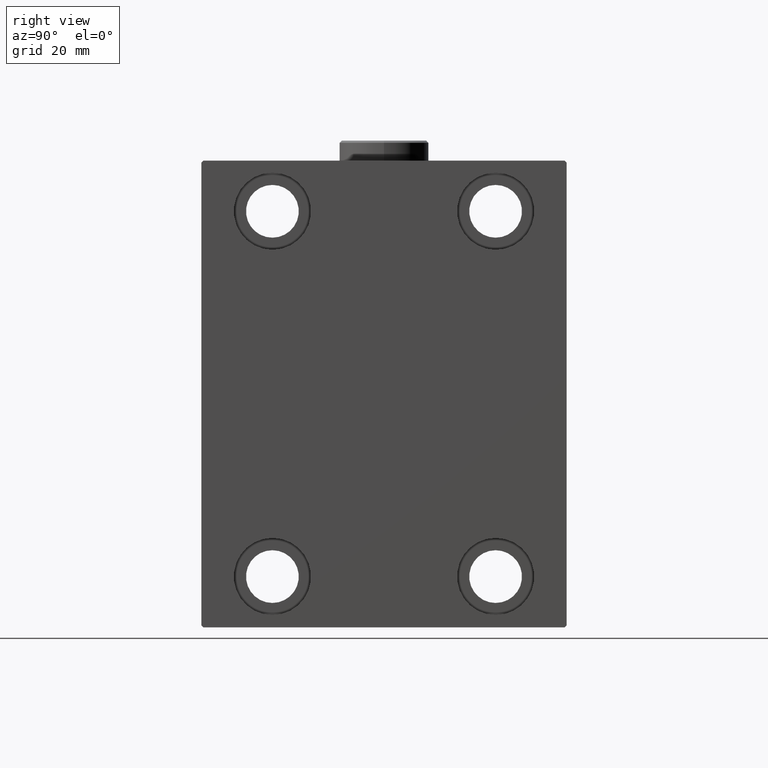
[diagram: clean part render]
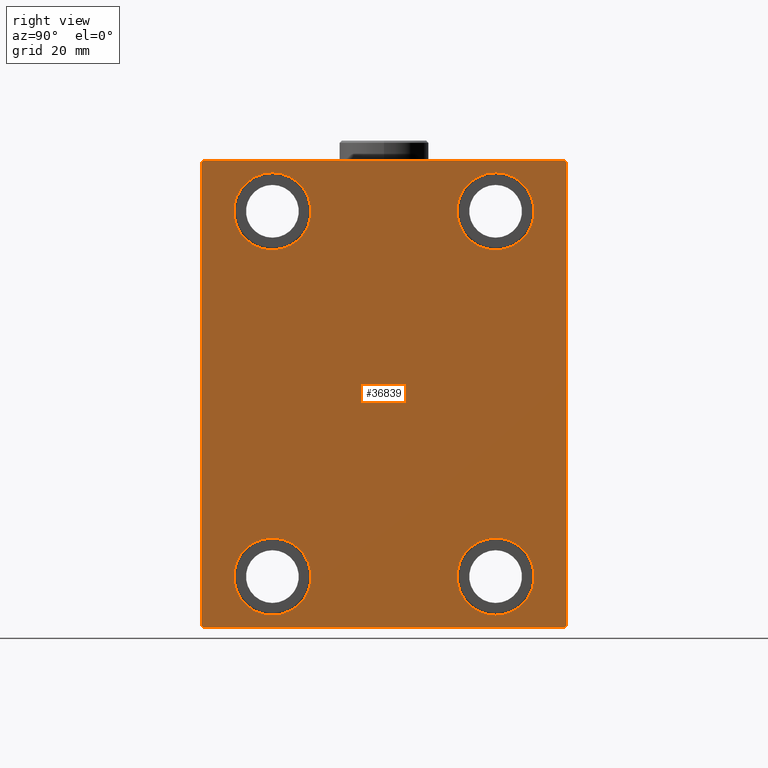
[diagram: same view with one face highlighted and labeled with its STEP entity id]
A machine part, right view. The second image highlights one B-rep face of the part: STEP entity #36839.
In plain terms, the highlighted planar face has unit normal (1, 0, 0).
Its self-contained STEP definition (entity closure, byte-faithful):
#828 = CARTESIAN_POINT ( 'NONE',  ( 88.00000000000000000, 27.50000000000001066, 54.50000000000000711 ) ) ;
#898 = CARTESIAN_POINT ( 'NONE',  ( 88.00000000000000000, 45.00000000000000000, 57.00000000000000711 ) ) ;
#1189 = CARTESIAN_POINT ( 'NONE',  ( 88.00000000000000000, -45.00000000000000000, 57.00000000000000711 ) ) ;
#1442 = EDGE_LOOP ( 'NONE', ( #37946, #31533 ) ) ;
#1805 = CIRCLE ( 'NONE', #44040, 9.500000000000001776 ) ;
#1835 = CIRCLE ( 'NONE', #25864, 9.500000000000001776 ) ;
#2579 = LINE ( 'NONE', #27191, #21016 ) ;
#2630 = CARTESIAN_POINT ( 'NONE',  ( 88.00000000000000000, 45.00000000000001421, -57.50000000000000711 ) ) ;
#2706 = DIRECTION ( 'NONE',  ( 0.000000000000000000, 0.000000000000000000, 1.000000000000000000 ) ) ;
#2805 = DIRECTION ( 'NONE',  ( -0.000000000000000000, 0.7071067811865573427, -0.7071067811865378028 ) ) ;
#3387 = EDGE_LOOP ( 'NONE', ( #14261, #11765 ) ) ;
#3648 = PLANE ( 'NONE',  #22127 ) ;
#3873 = DIRECTION ( 'NONE',  ( 0.000000000000000000, 0.000000000000000000, -1.000000000000000000 ) ) ;
#4791 = CARTESIAN_POINT ( 'NONE',  ( 88.00000000000000000, -51.00000000000063238, 50.99999999999921840 ) ) ;
#5290 = VECTOR ( 'NONE', #37983, 1000.000000000000000 ) ;
#5377 = CARTESIAN_POINT ( 'NONE',  ( 88.00000000000000000, 51.00000000000063949, -50.99999999999923261 ) ) ;
#5838 = VERTEX_POINT ( 'NONE', #1189 ) ;
#5870 = DIRECTION ( 'NONE',  ( 0.000000000000000000, 0.000000000000000000, 1.000000000000000000 ) ) ;
#6759 = ORIENTED_EDGE ( 'NONE', *, *, #39813, .T. ) ;
#6842 = FACE_BOUND ( 'NONE', #25703, .T. ) ;
#7036 = EDGE_CURVE ( 'NONE', #31376, #14358, #17664, .T. ) ;
#7172 = LINE ( 'NONE', #14898, #14186 ) ;
#7280 = DIRECTION ( 'NONE',  ( 1.000000000000000000, 0.000000000000000000, 0.000000000000000000 ) ) ;
#7671 = CARTESIAN_POINT ( 'NONE',  ( 88.00000000000000000, -27.49999999999998934, 35.50000000000000711 ) ) ;
#7703 = CARTESIAN_POINT ( 'NONE',  ( 88.00000000000000000, 27.50000000000001066, 45.00000000000000711 ) ) ;
#7897 = CIRCLE ( 'NONE', #45067, 9.500000000000001776 ) ;
#8155 = CIRCLE ( 'NONE', #21900, 9.500000000000001776 ) ;
#8200 = CARTESIAN_POINT ( 'NONE',  ( 88.00000000000000000, 45.00000000000000000, 57.50000000000000711 ) ) ;
#9062 = ORIENTED_EDGE ( 'NONE', *, *, #27956, .T. ) ;
#9184 = CARTESIAN_POINT ( 'NONE',  ( 88.00000000000000000, -27.49999999999998934, 45.00000000000000711 ) ) ;
#9274 = CARTESIAN_POINT ( 'NONE',  ( 88.00000000000000000, -27.50000000000000000, -35.49999999999998579 ) ) ;
#9668 = AXIS2_PLACEMENT_3D ( 'NONE', #12709, #13151, #2706 ) ;
#9956 = ORIENTED_EDGE ( 'NONE', *, *, #22939, .T. ) ;
#10220 = CARTESIAN_POINT ( 'NONE',  ( 88.00000000000000000, 44.50000000000000000, -57.50000000000000711 ) ) ;
#10868 = VERTEX_POINT ( 'NONE', #39738 ) ;
#11022 = DIRECTION ( 'NONE',  ( 0.000000000000000000, 1.000000000000000000, 0.000000000000000000 ) ) ;
#11162 = VERTEX_POINT ( 'NONE', #20703 ) ;
#11765 = ORIENTED_EDGE ( 'NONE', *, *, #22903, .T. ) ;
#12709 = CARTESIAN_POINT ( 'NONE',  ( 88.00000000000000000, -27.50000000000000000, -44.99999999999998579 ) ) ;
#12897 = ORIENTED_EDGE ( 'NONE', *, *, #42112, .T. ) ;
#12939 = ORIENTED_EDGE ( 'NONE', *, *, #12991, .T. ) ;
#12949 = EDGE_CURVE ( 'NONE', #14358, #31376, #1835, .T. ) ;
#12991 = EDGE_CURVE ( 'NONE', #27662, #18596, #7172, .T. ) ;
#13136 = DIRECTION ( 'NONE',  ( -1.000000000000000000, -0.000000000000000000, -0.000000000000000000 ) ) ;
#13151 = DIRECTION ( 'NONE',  ( -1.000000000000000000, -0.000000000000000000, -0.000000000000000000 ) ) ;
#13161 = CIRCLE ( 'NONE', #39461, 9.500000000000001776 ) ;
#13566 = VERTEX_POINT ( 'NONE', #898 ) ;
#14186 = VECTOR ( 'NONE', #11022, 1000.000000000000000 ) ;
#14261 = ORIENTED_EDGE ( 'NONE', *, *, #40199, .T. ) ;
#14358 = VERTEX_POINT ( 'NONE', #34006 ) ;
#14474 = EDGE_CURVE ( 'NONE', #34413, #5838, #22765, .T. ) ;
#14477 = EDGE_LOOP ( 'NONE', ( #26602, #39304 ) ) ;
#14898 = CARTESIAN_POINT ( 'NONE',  ( 88.00000000000000000, -45.00000000000000000, -57.50000000000000711 ) ) ;
#16098 = CARTESIAN_POINT ( 'NONE',  ( 88.00000000000000000, 27.50000000000001066, 45.00000000000000711 ) ) ;
#16159 = CARTESIAN_POINT ( 'NONE',  ( 88.00000000000000000, 50.99999999999940314, 51.00000000000082423 ) ) ;
#17008 = EDGE_LOOP ( 'NONE', ( #6759, #18754, #12897, #33911, #12939, #39127, #18859, #9062 ) ) ;
#17054 = VECTOR ( 'NONE', #18691, 1000.000000000000000 ) ;
#17131 = CARTESIAN_POINT ( 'NONE',  ( 88.00000000000000000, -44.50000000000000000, -57.50000000000000711 ) ) ;
#17362 = CARTESIAN_POINT ( 'NONE',  ( 88.00000000000000000, 44.50000000000001421, 57.50000000000000711 ) ) ;
#17485 = CARTESIAN_POINT ( 'NONE',  ( 88.00000000000000000, -45.00000000000000000, 57.49999999999999289 ) ) ;
#17664 = CIRCLE ( 'NONE', #9668, 9.500000000000001776 ) ;
#17767 = VECTOR ( 'NONE', #26189, 1000.000000000000114 ) ;
#18166 = DIRECTION ( 'NONE',  ( 0.000000000000000000, 0.000000000000000000, -1.000000000000000000 ) ) ;
#18596 = VERTEX_POINT ( 'NONE', #10220 ) ;
#18691 = DIRECTION ( 'NONE',  ( 0.000000000000000000, -1.000000000000000000, -1.541976423090495387E-16 ) ) ;
#18754 = ORIENTED_EDGE ( 'NONE', *, *, #14474, .T. ) ;
#18859 = ORIENTED_EDGE ( 'NONE', *, *, #35066, .T. ) ;
#18958 = VERTEX_POINT ( 'NONE', #29084 ) ;
#20023 = DIRECTION ( 'NONE',  ( -1.000000000000000000, -0.000000000000000000, -0.000000000000000000 ) ) ;
#20427 = CARTESIAN_POINT ( 'NONE',  ( 88.00000000000000000, 27.49999999999998934, -35.49999999999998579 ) ) ;
#20703 = CARTESIAN_POINT ( 'NONE',  ( 88.00000000000000000, -27.49999999999998934, 54.50000000000000711 ) ) ;
#20760 = CARTESIAN_POINT ( 'NONE',  ( 88.00000000000000000, 0.000000000000000000, 0.000000000000000000 ) ) ;
#21016 = VECTOR ( 'NONE', #2805, 1000.000000000000000 ) ;
#21062 = EDGE_CURVE ( 'NONE', #18596, #18958, #42823, .T. ) ;
#21193 = FACE_BOUND ( 'NONE', #1442, .T. ) ;
#21900 = AXIS2_PLACEMENT_3D ( 'NONE', #9184, #36805, #22204 ) ;
#22127 = AXIS2_PLACEMENT_3D ( 'NONE', #20760, #7280, #3873 ) ;
#22204 = DIRECTION ( 'NONE',  ( 0.000000000000000000, 0.000000000000000000, 1.000000000000000000 ) ) ;
#22765 = LINE ( 'NONE', #4791, #17767 ) ;
#22903 = EDGE_CURVE ( 'NONE', #23162, #10868, #34109, .T. ) ;
#22939 = EDGE_CURVE ( 'NONE', #40857, #29239, #7897, .T. ) ;
#22941 = CARTESIAN_POINT ( 'NONE',  ( 88.00000000000000000, 27.49999999999998934, -44.99999999999998579 ) ) ;
#23162 = VERTEX_POINT ( 'NONE', #20427 ) ;
#23187 = AXIS2_PLACEMENT_3D ( 'NONE', #39402, #29121, #38734 ) ;
#23205 = CARTESIAN_POINT ( 'NONE',  ( 88.00000000000000000, -27.49999999999998934, 45.00000000000000711 ) ) ;
#23280 = EDGE_CURVE ( 'NONE', #43513, #27662, #2579, .T. ) ;
#23412 = CIRCLE ( 'NONE', #34337, 9.500000000000001776 ) ;
#23566 = CARTESIAN_POINT ( 'NONE',  ( 88.00000000000000000, -45.00000000000000000, -57.00000000000002132 ) ) ;
#23696 = DIRECTION ( 'NONE',  ( -0.000000000000000000, -0.7071067811865573427, 0.7071067811865376918 ) ) ;
#25703 = EDGE_LOOP ( 'NONE', ( #9956, #44491 ) ) ;
#25864 = AXIS2_PLACEMENT_3D ( 'NONE', #30044, #13136, #43980 ) ;
#26189 = DIRECTION ( 'NONE',  ( 0.000000000000000000, -0.7071067811865376918, -0.7071067811865573427 ) ) ;
#26345 = VECTOR ( 'NONE', #23696, 1000.000000000000114 ) ;
#26602 = ORIENTED_EDGE ( 'NONE', *, *, #28525, .T. ) ;
#27191 = CARTESIAN_POINT ( 'NONE',  ( 88.00000000000000000, -50.99999999999939604, -51.00000000000080291 ) ) ;
#27474 = LINE ( 'NONE', #2630, #5290 ) ;
#27662 = VERTEX_POINT ( 'NONE', #17131 ) ;
#27908 = CARTESIAN_POINT ( 'NONE',  ( 88.00000000000000000, -44.50000000000000000, 57.49999999999999289 ) ) ;
#27956 = EDGE_CURVE ( 'NONE', #13566, #36327, #41041, .T. ) ;
#28525 = EDGE_CURVE ( 'NONE', #32418, #11162, #8155, .T. ) ;
#29084 = CARTESIAN_POINT ( 'NONE',  ( 88.00000000000000000, 45.00000000000001421, -57.00000000000000711 ) ) ;
#29121 = DIRECTION ( 'NONE',  ( -1.000000000000000000, -0.000000000000000000, -0.000000000000000000 ) ) ;
#29239 = VERTEX_POINT ( 'NONE', #828 ) ;
#30027 = DIRECTION ( 'NONE',  ( -1.000000000000000000, -0.000000000000000000, -0.000000000000000000 ) ) ;
#30044 = CARTESIAN_POINT ( 'NONE',  ( 88.00000000000000000, -27.50000000000000000, -44.99999999999998579 ) ) ;
#30822 = EDGE_CURVE ( 'NONE', #11162, #32418, #23412, .T. ) ;
#31362 = EDGE_CURVE ( 'NONE', #29239, #40857, #13161, .T. ) ;
#31376 = VERTEX_POINT ( 'NONE', #9274 ) ;
#31533 = ORIENTED_EDGE ( 'NONE', *, *, #7036, .T. ) ;
#32399 = LINE ( 'NONE', #8200, #17054 ) ;
#32418 = VERTEX_POINT ( 'NONE', #7671 ) ;
#32761 = DIRECTION ( 'NONE',  ( -0.000000000000000000, 0.7071067811865378028, 0.7071067811865573427 ) ) ;
#33201 = VECTOR ( 'NONE', #18166, 1000.000000000000000 ) ;
#33911 = ORIENTED_EDGE ( 'NONE', *, *, #23280, .T. ) ;
#34006 = CARTESIAN_POINT ( 'NONE',  ( 88.00000000000000000, -27.50000000000000000, -54.49999999999998579 ) ) ;
#34109 = CIRCLE ( 'NONE', #23187, 9.500000000000001776 ) ;
#34337 = AXIS2_PLACEMENT_3D ( 'NONE', #23205, #20023, #5870 ) ;
#34413 = VERTEX_POINT ( 'NONE', #27908 ) ;
#34449 = FACE_BOUND ( 'NONE', #3387, .T. ) ;
#35066 = EDGE_CURVE ( 'NONE', #18958, #13566, #27474, .T. ) ;
#35309 = DIRECTION ( 'NONE',  ( -1.000000000000000000, -0.000000000000000000, -0.000000000000000000 ) ) ;
#36172 = VECTOR ( 'NONE', #32761, 1000.000000000000000 ) ;
#36327 = VERTEX_POINT ( 'NONE', #17362 ) ;
#36430 = CARTESIAN_POINT ( 'NONE',  ( 88.00000000000000000, 27.50000000000001066, 35.50000000000000711 ) ) ;
#36649 = DIRECTION ( 'NONE',  ( 0.000000000000000000, 0.000000000000000000, 1.000000000000000000 ) ) ;
#36805 = DIRECTION ( 'NONE',  ( -1.000000000000000000, -0.000000000000000000, -0.000000000000000000 ) ) ;
#36839 = ADVANCED_FACE ( 'NONE', ( #34449, #38552, #6842, #21193, #41744 ), #3648, .T. ) ;
#37946 = ORIENTED_EDGE ( 'NONE', *, *, #12949, .T. ) ;
#37983 = DIRECTION ( 'NONE',  ( 0.000000000000000000, -1.206764157201257045E-16, 1.000000000000000000 ) ) ;
#38552 = FACE_BOUND ( 'NONE', #14477, .T. ) ;
#38734 = DIRECTION ( 'NONE',  ( 0.000000000000000000, 0.000000000000000000, 1.000000000000000000 ) ) ;
#39127 = ORIENTED_EDGE ( 'NONE', *, *, #21062, .T. ) ;
#39304 = ORIENTED_EDGE ( 'NONE', *, *, #30822, .T. ) ;
#39402 = CARTESIAN_POINT ( 'NONE',  ( 88.00000000000000000, 27.49999999999998934, -44.99999999999998579 ) ) ;
#39461 = AXIS2_PLACEMENT_3D ( 'NONE', #16098, #30027, #40536 ) ;
#39629 = DIRECTION ( 'NONE',  ( 0.000000000000000000, 0.000000000000000000, 1.000000000000000000 ) ) ;
#39738 = CARTESIAN_POINT ( 'NONE',  ( 88.00000000000000000, 27.49999999999998934, -54.49999999999998579 ) ) ;
#39813 = EDGE_CURVE ( 'NONE', #36327, #34413, #32399, .T. ) ;
#40199 = EDGE_CURVE ( 'NONE', #10868, #23162, #1805, .T. ) ;
#40517 = DIRECTION ( 'NONE',  ( -1.000000000000000000, -0.000000000000000000, -0.000000000000000000 ) ) ;
#40536 = DIRECTION ( 'NONE',  ( 0.000000000000000000, 0.000000000000000000, 1.000000000000000000 ) ) ;
#40857 = VERTEX_POINT ( 'NONE', #36430 ) ;
#41041 = LINE ( 'NONE', #16159, #26345 ) ;
#41744 = FACE_OUTER_BOUND ( 'NONE', #17008, .T. ) ;
#42112 = EDGE_CURVE ( 'NONE', #5838, #43513, #45126, .T. ) ;
#42823 = LINE ( 'NONE', #5377, #36172 ) ;
#43513 = VERTEX_POINT ( 'NONE', #23566 ) ;
#43980 = DIRECTION ( 'NONE',  ( 0.000000000000000000, 0.000000000000000000, 1.000000000000000000 ) ) ;
#44040 = AXIS2_PLACEMENT_3D ( 'NONE', #22941, #40517, #36649 ) ;
#44491 = ORIENTED_EDGE ( 'NONE', *, *, #31362, .T. ) ;
#45067 = AXIS2_PLACEMENT_3D ( 'NONE', #7703, #35309, #39629 ) ;
#45126 = LINE ( 'NONE', #17485, #33201 ) ;